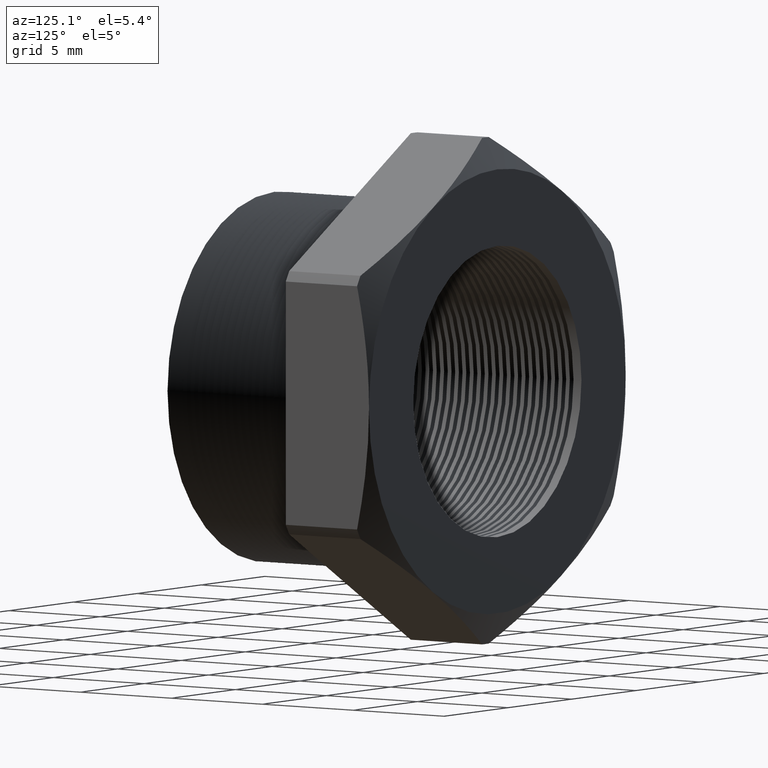
[diagram: clean part render]
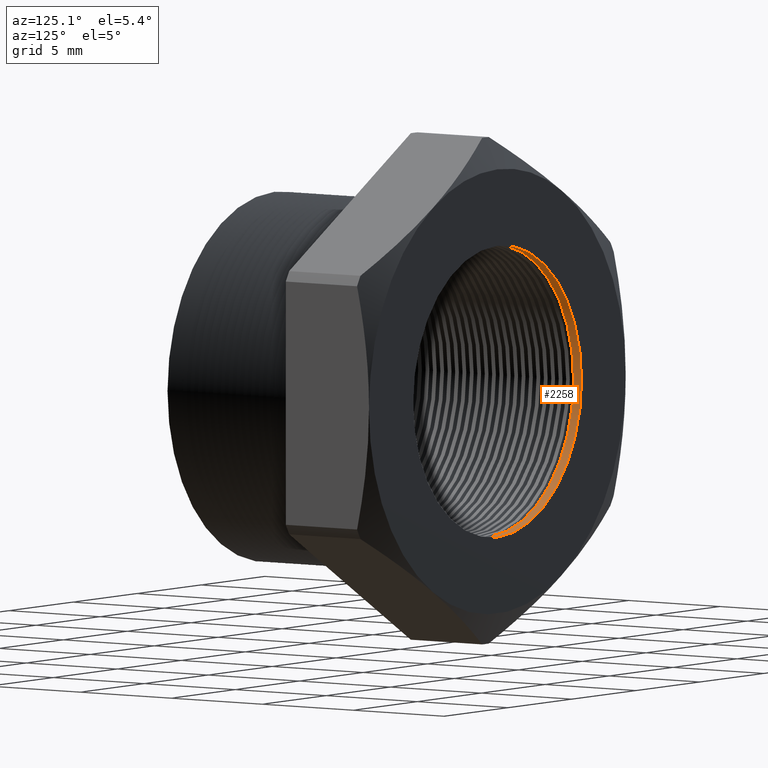
[diagram: same view with one face highlighted and labeled with its STEP entity id]
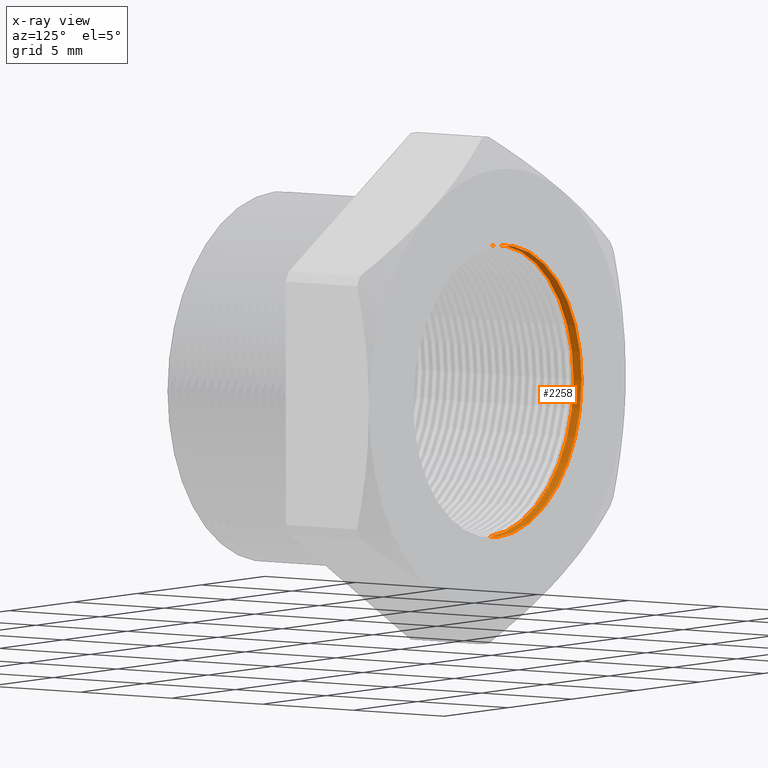
[diagram: x-ray of the same camera — body ghosted, the highlighted face saturated]
A machine part, auxiliary view. The second image highlights one B-rep face of the part: STEP entity #2258.
The next image is the same camera in x-ray: the body ghosted, the highlighted face saturated — about 0% of this face is hidden behind the body in this view.
In plain terms, the highlighted cylindrical surface (partial cylindrical patch) has radius 6.5783 mm, axis along (-0, -1, -0).
Its self-contained STEP definition (entity closure, byte-faithful):
#5 = VERTEX_POINT ( 'NONE', #2041 ) ;
#6 = VERTEX_POINT ( 'NONE', #2040 ) ;
#2040 = CARTESIAN_POINT ( 'NONE',  ( 3.171688816986526800E-017, 0.3903219653570460000, 0.2589880461203001900 ) ) ;
#2041 = CARTESIAN_POINT ( 'NONE',  ( 0.0000000000000000000, 0.3903219653570460000, -0.2589880461203001900 ) ) ;
#2254 = EDGE_CURVE ( 'NONE', #2255, #2281, #6474, .T. ) ;
#2255 = VERTEX_POINT ( 'NONE', #6469 ) ;
#2257 = ORIENTED_EDGE ( 'NONE', *, *, #2254, .F. ) ;
#2258 = ADVANCED_FACE ( 'NONE', ( #6468 ), #6525, .F. ) ;
#2259 = EDGE_LOOP ( 'NONE', ( #2257, #2282, #2280, #2278 ) ) ;
#2277 = EDGE_CURVE ( 'NONE', #2281, #5, #6550, .T. ) ;
#2278 = ORIENTED_EDGE ( 'NONE', *, *, #2277, .F. ) ;
#2279 = EDGE_CURVE ( 'NONE', #2255, #6, #6546, .T. ) ;
#2280 = ORIENTED_EDGE ( 'NONE', *, *, #7985, .F. ) ;
#2281 = VERTEX_POINT ( 'NONE', #6542 ) ;
#2282 = ORIENTED_EDGE ( 'NONE', *, *, #2279, .T. ) ;
#6468 = FACE_OUTER_BOUND ( 'NONE', #2259, .T. ) ;
#6469 = CARTESIAN_POINT ( 'NONE',  ( 3.171688816986526800E-017, 0.4075548905829479200, 0.2589880461203001900 ) ) ;
#6470 = DIRECTION ( 'NONE',  ( 0.0000000000000000000, 0.0000000000000000000, -1.000000000000000000 ) ) ;
#6471 = DIRECTION ( 'NONE',  ( -0.0000000000000000000, -1.000000000000000000, -0.0000000000000000000 ) ) ;
#6472 = CARTESIAN_POINT ( 'NONE',  ( 0.0000000000000000000, 0.4075548905829479200, 0.0000000000000000000 ) ) ;
#6473 = AXIS2_PLACEMENT_3D ( 'NONE', #6472, #6471, #6470 ) ;
#6474 = CIRCLE ( 'NONE', #6473, 0.2589880461203001900 ) ;
#6522 = DIRECTION ( 'NONE',  ( 0.0000000000000000000, 0.0000000000000000000, -1.000000000000000000 ) ) ;
#6523 = DIRECTION ( 'NONE',  ( -0.0000000000000000000, -1.000000000000000000, -0.0000000000000000000 ) ) ;
#6524 = AXIS2_PLACEMENT_3D ( 'NONE', #6526, #6523, #6522 ) ;
#6525 = CYLINDRICAL_SURFACE ( 'NONE', #6524, 0.2589880461203001900 ) ;
#6526 = CARTESIAN_POINT ( 'NONE',  ( 0.0000000000000000000, 0.0000000000000000000, 0.0000000000000000000 ) ) ;
#6542 = CARTESIAN_POINT ( 'NONE',  ( 0.0000000000000000000, 0.4075548905829479200, -0.2589880461203001900 ) ) ;
#6543 = DIRECTION ( 'NONE',  ( -0.0000000000000000000, -1.000000000000000000, -0.0000000000000000000 ) ) ;
#6544 = VECTOR ( 'NONE', #6543, 39.37007874015748100 ) ;
#6545 = CARTESIAN_POINT ( 'NONE',  ( 3.171688816986526800E-017, 0.0000000000000000000, 0.2589880461203001900 ) ) ;
#6546 = LINE ( 'NONE', #6545, #6544 ) ;
#6547 = DIRECTION ( 'NONE',  ( -0.0000000000000000000, -1.000000000000000000, -0.0000000000000000000 ) ) ;
#6548 = VECTOR ( 'NONE', #6547, 39.37007874015748100 ) ;
#6549 = CARTESIAN_POINT ( 'NONE',  ( 0.0000000000000000000, 0.0000000000000000000, -0.2589880461203001900 ) ) ;
#6550 = LINE ( 'NONE', #6549, #6548 ) ;
#7468 = DIRECTION ( 'NONE',  ( 0.0000000000000000000, 0.0000000000000000000, -1.000000000000000000 ) ) ;
#7469 = DIRECTION ( 'NONE',  ( -0.0000000000000000000, 1.000000000000000000, -0.0000000000000000000 ) ) ;
#7470 = CARTESIAN_POINT ( 'NONE',  ( 0.0000000000000000000, 0.3903219653570460000, 0.0000000000000000000 ) ) ;
#7471 = AXIS2_PLACEMENT_3D ( 'NONE', #7470, #7469, #7468 ) ;
#7476 = CIRCLE ( 'NONE', #7471, 0.2589880461203001900 ) ;
#7985 = EDGE_CURVE ( 'NONE', #5, #6, #7476, .T. ) ;